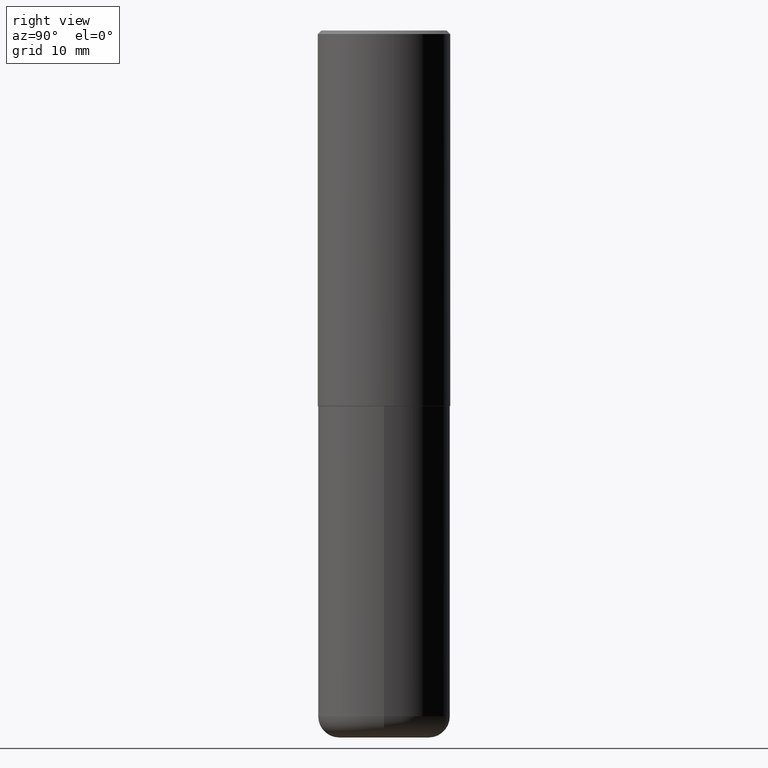
[diagram: clean part render]
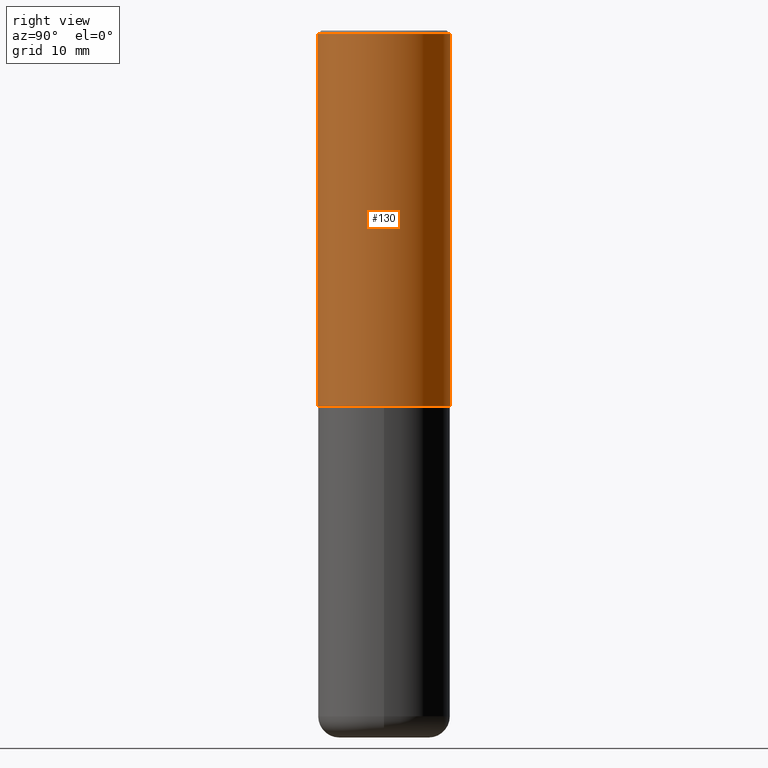
[diagram: same view with one face highlighted and labeled with its STEP entity id]
A machine part, right view. The second image highlights one B-rep face of the part: STEP entity #130.
In plain terms, the highlighted cylindrical surface (partial cylindrical patch) has radius 9.525 mm, axis along (-0, 0, 1).
Its self-contained STEP definition (entity closure, byte-faithful):
#19 = CARTESIAN_POINT ( 'NONE',  ( 4.889199683026055945E-31, -6.985451491424065481E-17, -0.02000000000000008715 ) ) ;
#23 = DIRECTION ( 'NONE',  ( -2.444599841513017620E-29, 3.492725745712017802E-15, 1.000000000000000000 ) ) ;
#36 = EDGE_CURVE ( 'NONE', #95, #150, #116, .T. ) ;
#52 = CARTESIAN_POINT ( 'NONE',  ( 2.664535259100376880E-15, 0.3750000000000002220, -1.309772154642007612E-15 ) ) ;
#54 = DIRECTION ( 'NONE',  ( -2.444599841513017620E-29, 3.492725745712018196E-15, 1.000000000000000000 ) ) ;
#55 = DIRECTION ( 'NONE',  ( -2.444599841513017620E-29, 3.492725745712017802E-15, 1.000000000000000000 ) ) ;
#56 = CIRCLE ( 'NONE', #350, 0.3750000000000001110 ) ;
#70 = EDGE_CURVE ( 'NONE', #302, #362, #56, .T. ) ;
#74 = DIRECTION ( 'NONE',  ( -6.982962677686266711E-15, -1.000000000000000000, 3.642463991552348591E-15 ) ) ;
#84 = CYLINDRICAL_SURFACE ( 'NONE', #226, 0.3750000000000002220 ) ;
#87 = EDGE_CURVE ( 'NONE', #150, #362, #409, .T. ) ;
#95 = VERTEX_POINT ( 'NONE', #369 ) ;
#116 = CIRCLE ( 'NONE', #355, 0.3750000000000002776 ) ;
#119 = FACE_OUTER_BOUND ( 'NONE', #391, .T. ) ;
#130 = ADVANCED_FACE ( 'NONE', ( #119 ), #84, .T. ) ;
#136 = ORIENTED_EDGE ( 'NONE', *, *, #70, .F. ) ;
#146 = DIRECTION ( 'NONE',  ( -6.982962677686265922E-15, -1.000000000000000000, 3.494488891895535640E-15 ) ) ;
#149 = CARTESIAN_POINT ( 'NONE',  ( 0.000000000000000000, 0.000000000000000000, 0.000000000000000000 ) ) ;
#150 = VERTEX_POINT ( 'NONE', #153 ) ;
#153 = CARTESIAN_POINT ( 'NONE',  ( 2.664535259100402913E-15, 0.3749999999999928391, -2.124000000000000998 ) ) ;
#154 = VECTOR ( 'NONE', #54, 39.37007874015748143 ) ;
#159 = ORIENTED_EDGE ( 'NONE', *, *, #87, .T. ) ;
#168 = LINE ( 'NONE', #375, #154 ) ;
#196 = CARTESIAN_POINT ( 'NONE',  ( -2.572686749164324336E-15, -0.3750000000000001665, -0.01999999999999877570 ) ) ;
#226 = AXIS2_PLACEMENT_3D ( 'NONE', #149, #285, #414 ) ;
#267 = ORIENTED_EDGE ( 'NONE', *, *, #352, .F. ) ;
#281 = CARTESIAN_POINT ( 'NONE',  ( 2.618611004132351200E-15, 0.3750000000000000555, -0.02000000000000139513 ) ) ;
#285 = DIRECTION ( 'NONE',  ( -2.444599841513017620E-29, 3.492725745712017802E-15, 1.000000000000000000 ) ) ;
#293 = VECTOR ( 'NONE', #333, 39.37007874015748143 ) ;
#302 = VERTEX_POINT ( 'NONE', #196 ) ;
#333 = DIRECTION ( 'NONE',  ( -2.444599841513017620E-29, 3.492725745712018196E-15, 1.000000000000000000 ) ) ;
#350 = AXIS2_PLACEMENT_3D ( 'NONE', #19, #23, #146 ) ;
#352 = EDGE_CURVE ( 'NONE', #95, #302, #168, .T. ) ;
#355 = AXIS2_PLACEMENT_3D ( 'NONE', #367, #55, #74 ) ;
#362 = VERTEX_POINT ( 'NONE', #281 ) ;
#367 = CARTESIAN_POINT ( 'NONE',  ( 5.192330063373648592E-29, -7.418549483892325607E-15, -2.123999999999999666 ) ) ;
#369 = CARTESIAN_POINT ( 'NONE',  ( -2.618611004132299924E-15, -0.3750000000000077716, -2.123999999999998334 ) ) ;
#375 = CARTESIAN_POINT ( 'NONE',  ( -2.618611004132351594E-15, -0.3750000000000002220, 1.309772154642007612E-15 ) ) ;
#391 = EDGE_LOOP ( 'NONE', ( #398, #159, #136, #267 ) ) ;
#398 = ORIENTED_EDGE ( 'NONE', *, *, #36, .T. ) ;
#409 = LINE ( 'NONE', #52, #293 ) ;
#414 = DIRECTION ( 'NONE',  ( -6.982962677686266711E-15, -1.000000000000000000, 3.492725745712018196E-15 ) ) ;